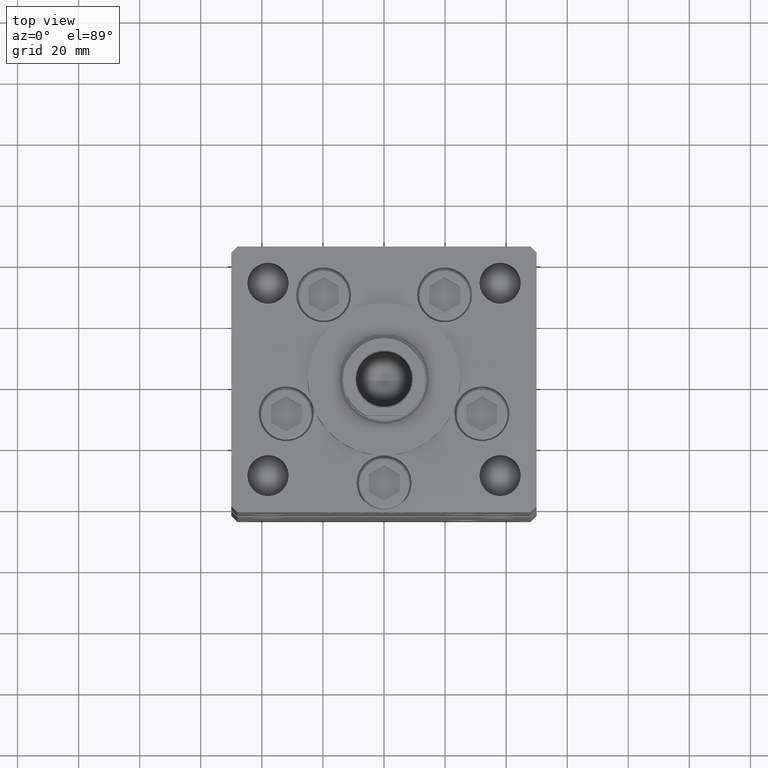
[diagram: clean part render]
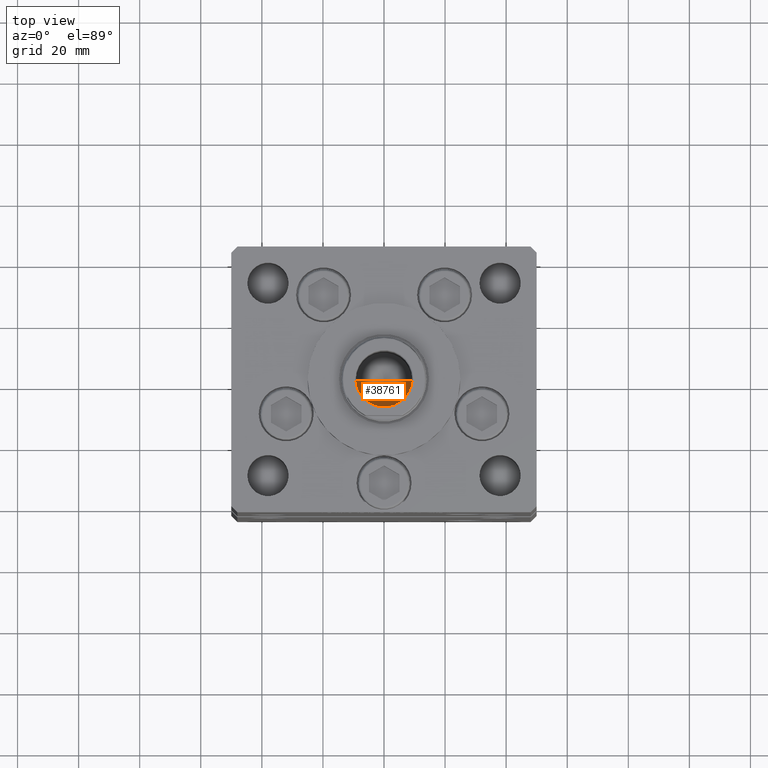
[diagram: same view with one face highlighted and labeled with its STEP entity id]
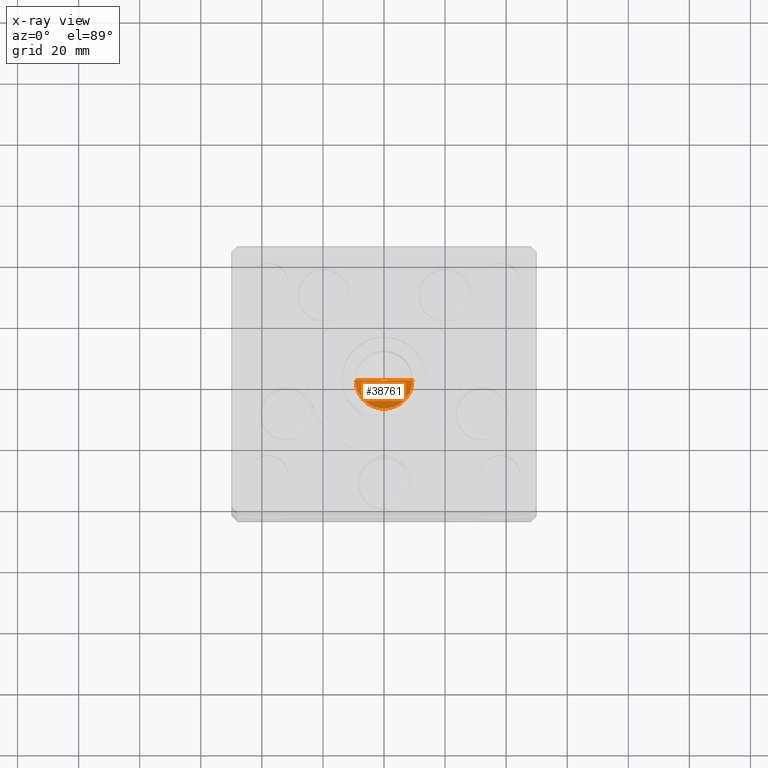
[diagram: x-ray of the same camera — body ghosted, the highlighted face saturated]
A machine part, top view. The second image highlights one B-rep face of the part: STEP entity #38761.
The next image is the same camera in x-ray: the body ghosted, the highlighted face saturated — about 9% of this face is hidden behind the body in this view.
In plain terms, the highlighted conical surface has half-angle 59 deg.
Its self-contained STEP definition (entity closure, byte-faithful):
#914 = AXIS2_PLACEMENT_3D ( 'NONE', #2691, #6466, #23089 ) ;
#1384 = EDGE_LOOP ( 'NONE', ( #5867, #49798, #44455 ) ) ;
#2225 = VECTOR ( 'NONE', #37488, 1000.000000000000000 ) ;
#2691 = CARTESIAN_POINT ( 'NONE',  ( 0.000000000000000000, 0.000000000000000000, 130.2500000000000000 ) ) ;
#4429 = CARTESIAN_POINT ( 'NONE',  ( -1.046994375366439223E-14, 0.000000000000000000, 124.6920392739950643 ) ) ;
#5867 = ORIENTED_EDGE ( 'NONE', *, *, #14757, .F. ) ;
#6466 = DIRECTION ( 'NONE',  ( -0.000000000000000000, -0.000000000000000000, 1.000000000000000000 ) ) ;
#10093 = CIRCLE ( 'NONE', #43567, 9.249999999999994671 ) ;
#10385 = CONICAL_SURFACE ( 'NONE', #914, 9.249999999999994671, 1.029744258676653423 ) ;
#10763 = FACE_OUTER_BOUND ( 'NONE', #1384, .T. ) ;
#10871 = VERTEX_POINT ( 'NONE', #4429 ) ;
#12540 = LINE ( 'NONE', #24355, #2225 ) ;
#14757 = EDGE_CURVE ( 'NONE', #10871, #34945, #12540, .T. ) ;
#16554 = VERTEX_POINT ( 'NONE', #43201 ) ;
#20083 = CARTESIAN_POINT ( 'NONE',  ( 9.249999999999994671, 0.000000000000000000, 130.2500000000000000 ) ) ;
#20411 = LINE ( 'NONE', #36521, #44362 ) ;
#20924 = DIRECTION ( 'NONE',  ( -0.8571673007021117785, 1.049727191138617956E-16, 0.5150380749100550437 ) ) ;
#23089 = DIRECTION ( 'NONE',  ( 1.000000000000000000, 0.000000000000000000, 0.000000000000000000 ) ) ;
#24355 = CARTESIAN_POINT ( 'NONE',  ( 9.249999999999994671, 0.000000000000000000, 130.2500000000000000 ) ) ;
#24534 = EDGE_CURVE ( 'NONE', #16554, #34945, #10093, .T. ) ;
#25445 = CARTESIAN_POINT ( 'NONE',  ( 0.000000000000000000, 0.000000000000000000, 130.2500000000000000 ) ) ;
#28283 = EDGE_CURVE ( 'NONE', #10871, #16554, #20411, .T. ) ;
#34945 = VERTEX_POINT ( 'NONE', #20083 ) ;
#36521 = CARTESIAN_POINT ( 'NONE',  ( -9.249999999999994671, 1.132798289211300909E-15, 130.2500000000000000 ) ) ;
#37488 = DIRECTION ( 'NONE',  ( 0.8571673007021117785, 0.000000000000000000, 0.5150380749100550437 ) ) ;
#38761 = ADVANCED_FACE ( 'NONE', ( #10763 ), #10385, .F. ) ;
#43201 = CARTESIAN_POINT ( 'NONE',  ( -9.249999999999994671, 1.132798289211300909E-15, 130.2500000000000000 ) ) ;
#43567 = AXIS2_PLACEMENT_3D ( 'NONE', #25445, #50465, #49667 ) ;
#44362 = VECTOR ( 'NONE', #20924, 1000.000000000000000 ) ;
#44455 = ORIENTED_EDGE ( 'NONE', *, *, #24534, .T. ) ;
#49667 = DIRECTION ( 'NONE',  ( 1.000000000000000000, 0.000000000000000000, 0.000000000000000000 ) ) ;
#49798 = ORIENTED_EDGE ( 'NONE', *, *, #28283, .T. ) ;
#50465 = DIRECTION ( 'NONE',  ( -0.000000000000000000, -0.000000000000000000, 1.000000000000000000 ) ) ;